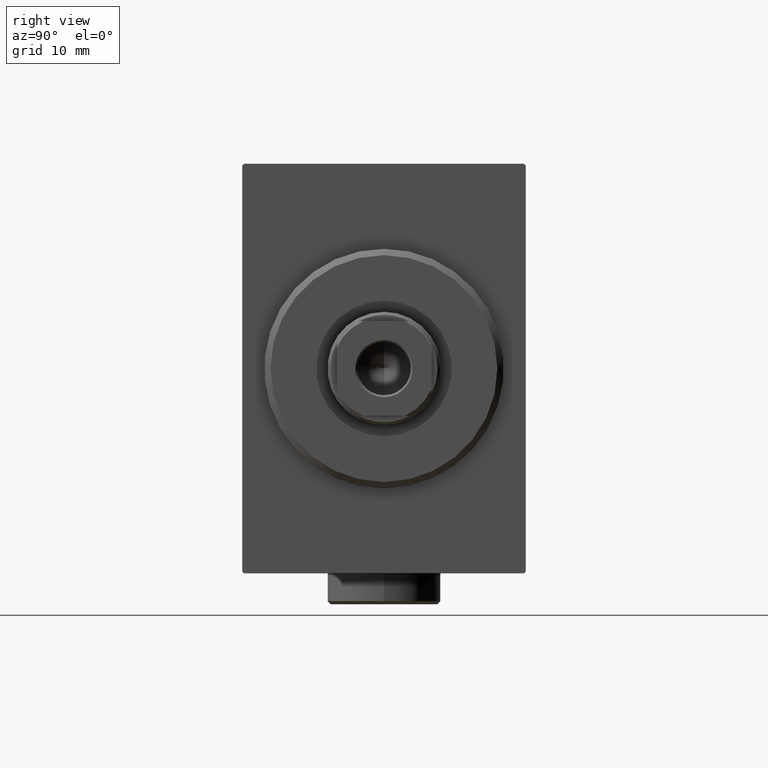
[diagram: clean part render]
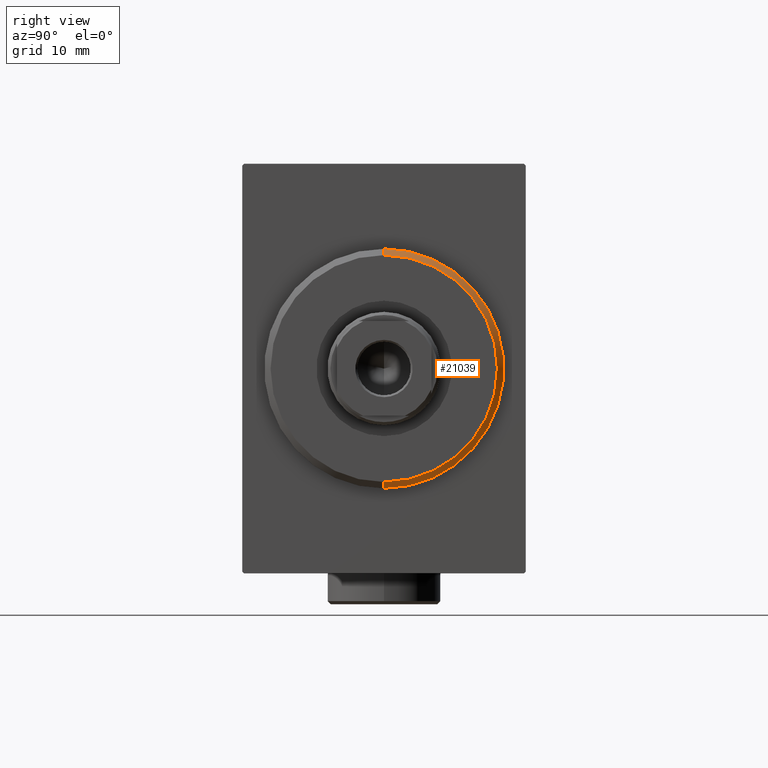
[diagram: same view with one face highlighted and labeled with its STEP entity id]
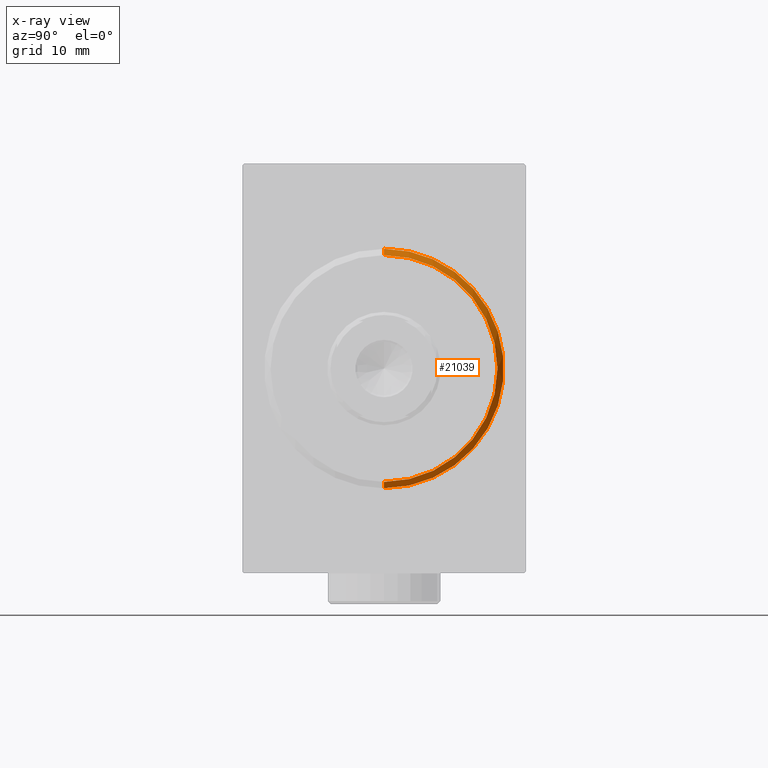
[diagram: x-ray of the same camera — body ghosted, the highlighted face saturated]
A machine part, right view. The second image highlights one B-rep face of the part: STEP entity #21039.
The next image is the same camera in x-ray: the body ghosted, the highlighted face saturated — about 0% of this face is hidden behind the body in this view.
In plain terms, the highlighted conical surface has half-angle 45 deg.
Its self-contained STEP definition (entity closure, byte-faithful):
#1229 = AXIS2_PLACEMENT_3D ( 'NONE', #21633, #4673, #18276 ) ;
#1483 = VECTOR ( 'NONE', #37286, 1000.000000000000000 ) ;
#2557 = CARTESIAN_POINT ( 'NONE',  ( 3.000000000000000000, 2.265596578422603002E-15, -17.99999999999999645 ) ) ;
#4277 = EDGE_CURVE ( 'NONE', #35241, #26766, #42241, .T. ) ;
#4673 = DIRECTION ( 'NONE',  ( 1.000000000000000000, -0.000000000000000000, 0.000000000000000000 ) ) ;
#5729 = EDGE_CURVE ( 'NONE', #10380, #26766, #23198, .T. ) ;
#7146 = CARTESIAN_POINT ( 'NONE',  ( 3.000000000000000000, 0.000000000000000000, 17.99999999999999645 ) ) ;
#7441 = DIRECTION ( 'NONE',  ( -1.000000000000000000, 0.000000000000000000, 0.000000000000000000 ) ) ;
#9221 = EDGE_LOOP ( 'NONE', ( #30410, #34418, #17999, #38466 ) ) ;
#10380 = VERTEX_POINT ( 'NONE', #19834 ) ;
#10500 = LINE ( 'NONE', #7146, #1483 ) ;
#10867 = VERTEX_POINT ( 'NONE', #40494 ) ;
#14018 = CONICAL_SURFACE ( 'NONE', #26124, 17.99999999999999645, 0.7853981633974466137 ) ;
#15024 = CARTESIAN_POINT ( 'NONE',  ( 3.000000000000000000, 0.000000000000000000, 0.000000000000000000 ) ) ;
#16430 = DIRECTION ( 'NONE',  ( -1.000000000000000000, 0.000000000000000000, 0.000000000000000000 ) ) ;
#17811 = CARTESIAN_POINT ( 'NONE',  ( 1.999999999999992228, 2.326828918379970970E-15, -19.00000000000000000 ) ) ;
#17999 = ORIENTED_EDGE ( 'NONE', *, *, #5729, .F. ) ;
#18276 = DIRECTION ( 'NONE',  ( 0.000000000000000000, 0.000000000000000000, -1.000000000000000000 ) ) ;
#19559 = DIRECTION ( 'NONE',  ( 0.000000000000000000, 0.000000000000000000, -1.000000000000000000 ) ) ;
#19834 = CARTESIAN_POINT ( 'NONE',  ( 1.999999999999992228, 0.000000000000000000, 19.00000000000000000 ) ) ;
#21039 = ADVANCED_FACE ( 'NONE', ( #38020 ), #14018, .T. ) ;
#21060 = DIRECTION ( 'NONE',  ( 0.000000000000000000, 0.000000000000000000, 1.000000000000000000 ) ) ;
#21633 = CARTESIAN_POINT ( 'NONE',  ( 3.000000000000000000, 0.000000000000000000, 0.000000000000000000 ) ) ;
#22497 = EDGE_CURVE ( 'NONE', #35241, #10867, #27595, .T. ) ;
#23198 = CIRCLE ( 'NONE', #39592, 19.00000000000000000 ) ;
#25704 = CARTESIAN_POINT ( 'NONE',  ( 3.000000000000000000, 2.204364238465235033E-15, -17.99999999999999645 ) ) ;
#26124 = AXIS2_PLACEMENT_3D ( 'NONE', #15024, #7441, #21060 ) ;
#26766 = VERTEX_POINT ( 'NONE', #17811 ) ;
#27595 = CIRCLE ( 'NONE', #1229, 17.99999999999999645 ) ;
#30410 = ORIENTED_EDGE ( 'NONE', *, *, #22497, .F. ) ;
#34418 = ORIENTED_EDGE ( 'NONE', *, *, #4277, .T. ) ;
#35241 = VERTEX_POINT ( 'NONE', #2557 ) ;
#37220 = EDGE_CURVE ( 'NONE', #10867, #10380, #10500, .T. ) ;
#37286 = DIRECTION ( 'NONE',  ( -0.7071067811865487940, 0.000000000000000000, 0.7071067811865463515 ) ) ;
#37423 = VECTOR ( 'NONE', #38893, 1000.000000000000000 ) ;
#38020 = FACE_OUTER_BOUND ( 'NONE', #9221, .T. ) ;
#38466 = ORIENTED_EDGE ( 'NONE', *, *, #37220, .F. ) ;
#38893 = DIRECTION ( 'NONE',  ( -0.7071067811865487940, 8.659560562354918067E-17, -0.7071067811865463515 ) ) ;
#39592 = AXIS2_PLACEMENT_3D ( 'NONE', #43014, #16430, #19559 ) ;
#40494 = CARTESIAN_POINT ( 'NONE',  ( 3.000000000000000000, 0.000000000000000000, 17.99999999999999645 ) ) ;
#42241 = LINE ( 'NONE', #25704, #37423 ) ;
#43014 = CARTESIAN_POINT ( 'NONE',  ( 1.999999999999992228, 0.000000000000000000, 0.000000000000000000 ) ) ;